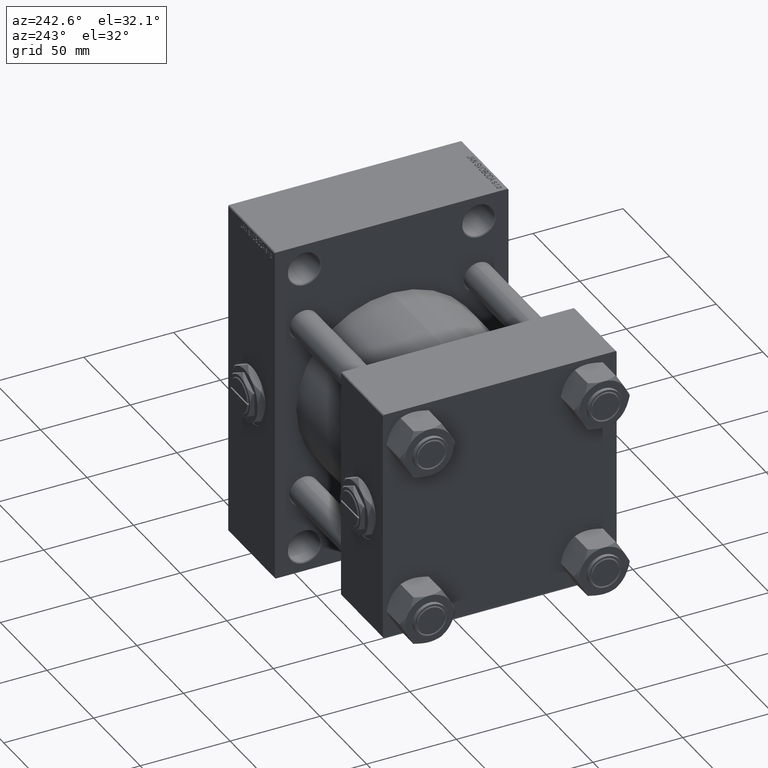
[diagram: clean part render]
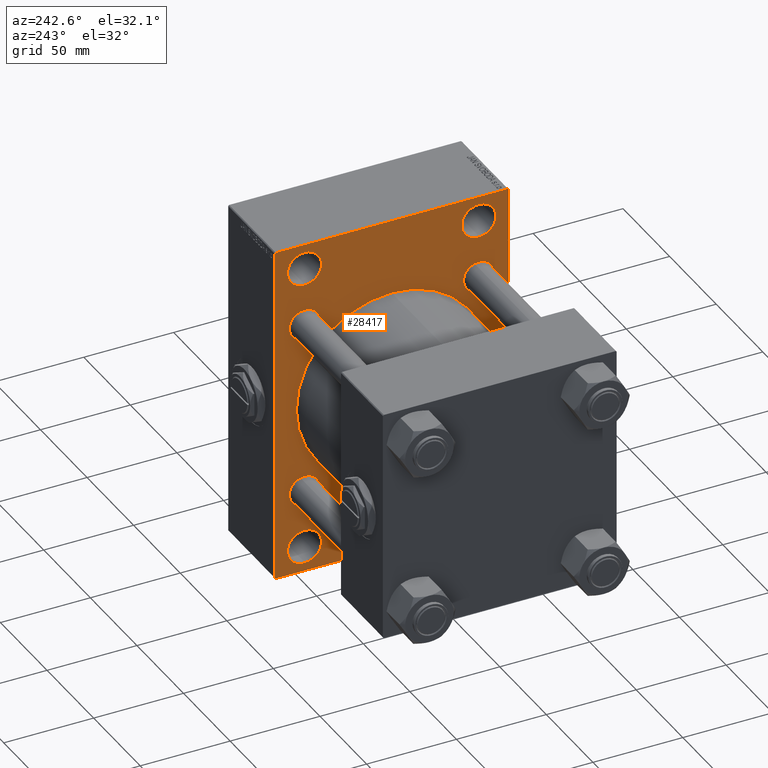
[diagram: same view with one face highlighted and labeled with its STEP entity id]
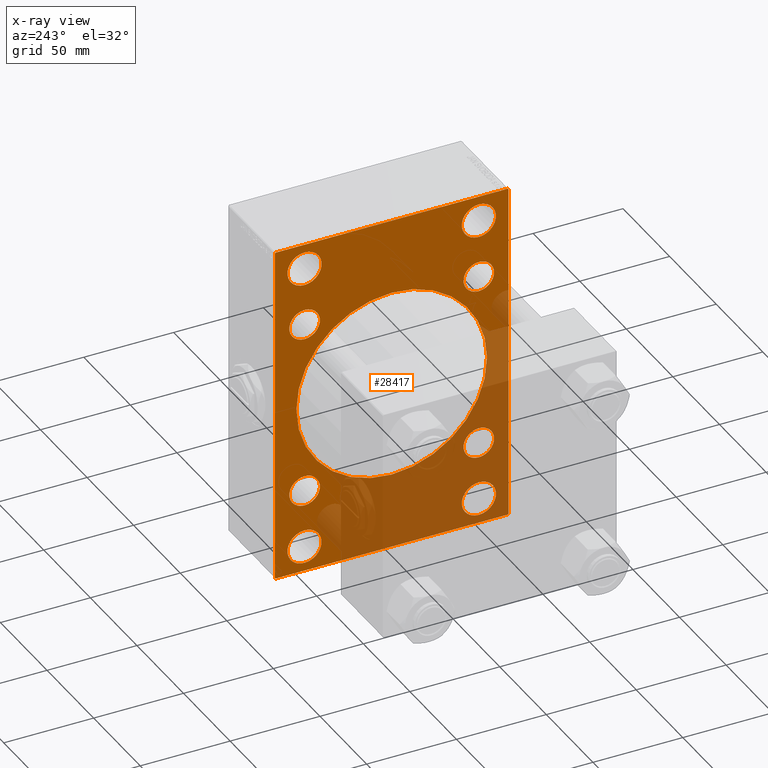
[diagram: x-ray of the same camera — body ghosted, the highlighted face saturated]
A machine part, auxiliary view. The second image highlights one B-rep face of the part: STEP entity #28417.
The next image is the same camera in x-ray: the body ghosted, the highlighted face saturated — about 38% of this face is hidden behind the body in this view.
In plain terms, the highlighted planar face has unit normal (-1, 0, 0).
Its self-contained STEP definition (entity closure, byte-faithful):
#185 = AXIS2_PLACEMENT_3D ( 'NONE', #3647, #42233, #19140 ) ;
#189 = LINE ( 'NONE', #15953, #9213 ) ;
#266 = VECTOR ( 'NONE', #19557, 1000.000000000000000 ) ;
#326 = CARTESIAN_POINT ( 'NONE',  ( 115.9999999999999858, -48.44999999999999574, 39.95000000000001705 ) ) ;
#479 = AXIS2_PLACEMENT_3D ( 'NONE', #4881, #43479, #13256 ) ;
#514 = VERTEX_POINT ( 'NONE', #7317 ) ;
#1043 = ORIENTED_EDGE ( 'NONE', *, *, #45472, .T. ) ;
#1374 = DIRECTION ( 'NONE',  ( 0.000000000000000000, 0.000000000000000000, 1.000000000000000000 ) ) ;
#1552 = CARTESIAN_POINT ( 'NONE',  ( 115.9999999999999858, 64.49999999999997158, 94.99999999999997158 ) ) ;
#1993 = CARTESIAN_POINT ( 'NONE',  ( 115.9999999999999858, -48.50000000000000000, 81.00000000000000000 ) ) ;
#2122 = CIRCLE ( 'NONE', #479, 9.500000000000092371 ) ;
#2539 = ORIENTED_EDGE ( 'NONE', *, *, #30850, .T. ) ;
#2541 = FACE_BOUND ( 'NONE', #49277, .T. ) ;
#2604 = AXIS2_PLACEMENT_3D ( 'NONE', #29008, #9720, #44494 ) ;
#2996 = AXIS2_PLACEMENT_3D ( 'NONE', #35184, #14638, #45870 ) ;
#3009 = LINE ( 'NONE', #11659, #21379 ) ;
#3452 = CARTESIAN_POINT ( 'NONE',  ( 115.9999999999999858, 79.74999999999997158, 79.74999999999997158 ) ) ;
#3535 = EDGE_CURVE ( 'NONE', #24826, #32572, #35415, .T. ) ;
#3617 = CARTESIAN_POINT ( 'NONE',  ( 115.9999999999999858, 48.45000000000000995, 39.95000000000000284 ) ) ;
#3647 = CARTESIAN_POINT ( 'NONE',  ( 115.9999999999999858, 48.45000000000000995, -48.45000000000001705 ) ) ;
#4098 = AXIS2_PLACEMENT_3D ( 'NONE', #10394, #25370, #17254 ) ;
#4618 = CARTESIAN_POINT ( 'NONE',  ( 115.9999999999999858, -48.44999999999999574, -56.95000000000003837 ) ) ;
#4881 = CARTESIAN_POINT ( 'NONE',  ( 115.9999999999999858, 48.50000000000000711, 81.00000000000000000 ) ) ;
#6076 = EDGE_LOOP ( 'NONE', ( #38759, #43574 ) ) ;
#6093 = CARTESIAN_POINT ( 'NONE',  ( 115.9999999999999858, -65.00000000000001421, 94.49999999999997158 ) ) ;
#6411 = CARTESIAN_POINT ( 'NONE',  ( 115.9999999999999858, 48.50000000000000711, -90.50000000000002842 ) ) ;
#6505 = EDGE_CURVE ( 'NONE', #514, #25174, #41614, .T. ) ;
#6859 = PLANE ( 'NONE',  #38880 ) ;
#7264 = DIRECTION ( 'NONE',  ( 0.000000000000000000, 0.7071067811865474617, -0.7071067811865474617 ) ) ;
#7317 = CARTESIAN_POINT ( 'NONE',  ( 115.9999999999999858, 64.99999999999997158, 94.49999999999997158 ) ) ;
#7328 = CARTESIAN_POINT ( 'NONE',  ( 115.9999999999999858, 48.50000000000000711, 71.49999999999991473 ) ) ;
#7330 = DIRECTION ( 'NONE',  ( 0.000000000000000000, -1.000000000000000000, -1.067522139062650425E-16 ) ) ;
#7540 = CIRCLE ( 'NONE', #11616, 9.500000000000008882 ) ;
#8021 = VECTOR ( 'NONE', #15208, 1000.000000000000000 ) ;
#8211 = EDGE_CURVE ( 'NONE', #35736, #514, #39240, .T. ) ;
#8418 = EDGE_CURVE ( 'NONE', #38968, #50275, #48825, .T. ) ;
#8489 = DIRECTION ( 'NONE',  ( 0.000000000000000000, 0.000000000000000000, 1.000000000000000000 ) ) ;
#8695 = EDGE_CURVE ( 'NONE', #24066, #28839, #39112, .T. ) ;
#8922 = VERTEX_POINT ( 'NONE', #25261 ) ;
#9206 = DIRECTION ( 'NONE',  ( 0.000000000000000000, 0.000000000000000000, 1.000000000000000000 ) ) ;
#9213 = VECTOR ( 'NONE', #35001, 1000.000000000000000 ) ;
#9426 = EDGE_CURVE ( 'NONE', #43359, #46652, #31024, .T. ) ;
#9429 = FACE_BOUND ( 'NONE', #11399, .T. ) ;
#9489 = AXIS2_PLACEMENT_3D ( 'NONE', #49705, #14908, #10857 ) ;
#9693 = CIRCLE ( 'NONE', #48610, 53.00000000000000711 ) ;
#9720 = DIRECTION ( 'NONE',  ( 1.000000000000000000, 0.000000000000000000, 0.000000000000000000 ) ) ;
#9777 = DIRECTION ( 'NONE',  ( 1.000000000000000000, -0.000000000000000000, 0.000000000000000000 ) ) ;
#9810 = DIRECTION ( 'NONE',  ( 1.000000000000000000, 0.000000000000000000, 0.000000000000000000 ) ) ;
#9997 = VERTEX_POINT ( 'NONE', #27843 ) ;
#10120 = AXIS2_PLACEMENT_3D ( 'NONE', #45251, #33069, #37133 ) ;
#10394 = CARTESIAN_POINT ( 'NONE',  ( 115.9999999999999858, -48.44999999999999574, 48.45000000000003126 ) ) ;
#10592 = CARTESIAN_POINT ( 'NONE',  ( 115.9999999999999858, 48.50000000000000711, 81.00000000000000000 ) ) ;
#10677 = CARTESIAN_POINT ( 'NONE',  ( 115.9999999999999858, 0.000000000000000000, 0.000000000000000000 ) ) ;
#10692 = DIRECTION ( 'NONE',  ( 0.000000000000000000, 0.000000000000000000, 1.000000000000000000 ) ) ;
#10746 = VERTEX_POINT ( 'NONE', #34674 ) ;
#10857 = DIRECTION ( 'NONE',  ( 0.000000000000000000, 0.000000000000000000, 1.000000000000000000 ) ) ;
#11207 = LINE ( 'NONE', #15750, #266 ) ;
#11349 = EDGE_CURVE ( 'NONE', #25174, #38660, #11207, .T. ) ;
#11399 = EDGE_LOOP ( 'NONE', ( #26192, #12251 ) ) ;
#11557 = EDGE_LOOP ( 'NONE', ( #14043, #28852, #25528, #14440, #42158, #25146, #28084, #15288 ) ) ;
#11616 = AXIS2_PLACEMENT_3D ( 'NONE', #47677, #40317, #16952 ) ;
#11659 = CARTESIAN_POINT ( 'NONE',  ( 115.9999999999999858, 64.99999999999998579, -95.00000000000001421 ) ) ;
#11705 = EDGE_CURVE ( 'NONE', #38660, #8922, #3009, .T. ) ;
#12049 = DIRECTION ( 'NONE',  ( 1.000000000000000000, -0.000000000000000000, 0.000000000000000000 ) ) ;
#12251 = ORIENTED_EDGE ( 'NONE', *, *, #47305, .T. ) ;
#12376 = AXIS2_PLACEMENT_3D ( 'NONE', #17526, #18028, #33751 ) ;
#12547 = CIRCLE ( 'NONE', #10120, 8.500000000000007105 ) ;
#12568 = DIRECTION ( 'NONE',  ( 0.000000000000000000, 0.000000000000000000, 1.000000000000000000 ) ) ;
#12680 = VERTEX_POINT ( 'NONE', #6093 ) ;
#12896 = CARTESIAN_POINT ( 'NONE',  ( 115.9999999999999858, -48.44999999999999574, -39.95000000000001705 ) ) ;
#13004 = DIRECTION ( 'NONE',  ( 1.000000000000000000, -0.000000000000000000, 0.000000000000000000 ) ) ;
#13036 = CIRCLE ( 'NONE', #45470, 8.500000000000007105 ) ;
#13256 = DIRECTION ( 'NONE',  ( 0.000000000000000000, 0.000000000000000000, 1.000000000000000000 ) ) ;
#13516 = CIRCLE ( 'NONE', #46751, 8.500000000000007105 ) ;
#13578 = CARTESIAN_POINT ( 'NONE',  ( 115.9999999999999858, -65.00000000000001421, 94.99999999999997158 ) ) ;
#13669 = EDGE_CURVE ( 'NONE', #50275, #38968, #36858, .T. ) ;
#13745 = CARTESIAN_POINT ( 'NONE',  ( 115.9999999999999858, 48.50000000000000711, -81.00000000000001421 ) ) ;
#14043 = ORIENTED_EDGE ( 'NONE', *, *, #11705, .T. ) ;
#14440 = ORIENTED_EDGE ( 'NONE', *, *, #47150, .T. ) ;
#14637 = CARTESIAN_POINT ( 'NONE',  ( 115.9999999999999858, 64.99999999999997158, 94.99999999999997158 ) ) ;
#14638 = DIRECTION ( 'NONE',  ( 1.000000000000000000, -0.000000000000000000, 0.000000000000000000 ) ) ;
#14908 = DIRECTION ( 'NONE',  ( 1.000000000000000000, -0.000000000000000000, 0.000000000000000000 ) ) ;
#14967 = AXIS2_PLACEMENT_3D ( 'NONE', #13745, #48778, #10692 ) ;
#15208 = DIRECTION ( 'NONE',  ( 0.000000000000000000, 7.304098846218135653E-17, -1.000000000000000000 ) ) ;
#15288 = ORIENTED_EDGE ( 'NONE', *, *, #11349, .T. ) ;
#15316 = ORIENTED_EDGE ( 'NONE', *, *, #44530, .T. ) ;
#15477 = DIRECTION ( 'NONE',  ( -0.000000000000000000, 0.000000000000000000, 1.000000000000000000 ) ) ;
#15483 = VECTOR ( 'NONE', #44556, 1000.000000000000000 ) ;
#15543 = ORIENTED_EDGE ( 'NONE', *, *, #50227, .T. ) ;
#15750 = CARTESIAN_POINT ( 'NONE',  ( 115.9999999999999858, 79.74999999999913314, -79.75000000000132161 ) ) ;
#15953 = CARTESIAN_POINT ( 'NONE',  ( 115.9999999999999858, -79.75000000000089528, 79.74999999999867839 ) ) ;
#16342 = ORIENTED_EDGE ( 'NONE', *, *, #39515, .T. ) ;
#16952 = DIRECTION ( 'NONE',  ( 0.000000000000000000, 0.000000000000000000, 1.000000000000000000 ) ) ;
#17151 = EDGE_CURVE ( 'NONE', #9997, #43151, #35364, .T. ) ;
#17189 = EDGE_CURVE ( 'NONE', #22475, #40450, #2122, .T. ) ;
#17254 = DIRECTION ( 'NONE',  ( 0.000000000000000000, 0.000000000000000000, 1.000000000000000000 ) ) ;
#17486 = CARTESIAN_POINT ( 'NONE',  ( 115.9999999999999858, -48.49999999999999289, -90.50000000000002842 ) ) ;
#17526 = CARTESIAN_POINT ( 'NONE',  ( 115.9999999999999858, -48.49999999999999289, -81.00000000000001421 ) ) ;
#17540 = FACE_BOUND ( 'NONE', #32500, .T. ) ;
#17612 = EDGE_CURVE ( 'NONE', #42857, #43075, #13516, .T. ) ;
#18028 = DIRECTION ( 'NONE',  ( 1.000000000000000000, -0.000000000000000000, 0.000000000000000000 ) ) ;
#18129 = AXIS2_PLACEMENT_3D ( 'NONE', #42737, #49867, #42480 ) ;
#18672 = EDGE_CURVE ( 'NONE', #10746, #33962, #20031, .T. ) ;
#18713 = ORIENTED_EDGE ( 'NONE', *, *, #18672, .T. ) ;
#18838 = CARTESIAN_POINT ( 'NONE',  ( 115.9999999999999858, -79.75000000000001421, -79.75000000000001421 ) ) ;
#19140 = DIRECTION ( 'NONE',  ( 0.000000000000000000, 0.000000000000000000, 1.000000000000000000 ) ) ;
#19557 = DIRECTION ( 'NONE',  ( -0.000000000000000000, -0.7071067811865573427, -0.7071067811865378028 ) ) ;
#19973 = VERTEX_POINT ( 'NONE', #4618 ) ;
#20031 = CIRCLE ( 'NONE', #2996, 9.500000000000092371 ) ;
#20898 = VECTOR ( 'NONE', #26318, 1000.000000000000000 ) ;
#21341 = FACE_BOUND ( 'NONE', #36469, .T. ) ;
#21379 = VECTOR ( 'NONE', #7330, 1000.000000000000000 ) ;
#21546 = DIRECTION ( 'NONE',  ( 1.000000000000000000, -0.000000000000000000, 0.000000000000000000 ) ) ;
#21841 = FACE_BOUND ( 'NONE', #42195, .T. ) ;
#21953 = EDGE_CURVE ( 'NONE', #8922, #44285, #26454, .T. ) ;
#22387 = AXIS2_PLACEMENT_3D ( 'NONE', #36608, #13004, #9206 ) ;
#22475 = VERTEX_POINT ( 'NONE', #32325 ) ;
#22549 = ORIENTED_EDGE ( 'NONE', *, *, #41869, .T. ) ;
#22764 = DIRECTION ( 'NONE',  ( 1.000000000000000000, -0.000000000000000000, 0.000000000000000000 ) ) ;
#22853 = FACE_OUTER_BOUND ( 'NONE', #11557, .T. ) ;
#23537 = CARTESIAN_POINT ( 'NONE',  ( 115.9999999999999858, 3.888542821515762466E-15, -53.00000000000000711 ) ) ;
#23991 = EDGE_CURVE ( 'NONE', #35736, #46113, #49934, .T. ) ;
#24066 = VERTEX_POINT ( 'NONE', #43497 ) ;
#24786 = ORIENTED_EDGE ( 'NONE', *, *, #34167, .T. ) ;
#24826 = VERTEX_POINT ( 'NONE', #326 ) ;
#25146 = ORIENTED_EDGE ( 'NONE', *, *, #8211, .T. ) ;
#25152 = FACE_BOUND ( 'NONE', #44340, .T. ) ;
#25174 = VERTEX_POINT ( 'NONE', #50078 ) ;
#25261 = CARTESIAN_POINT ( 'NONE',  ( 115.9999999999999858, -64.50000000000001421, -95.00000000000002842 ) ) ;
#25266 = CIRCLE ( 'NONE', #38134, 9.500000000000092371 ) ;
#25370 = DIRECTION ( 'NONE',  ( 1.000000000000000000, -0.000000000000000000, 0.000000000000000000 ) ) ;
#25528 = ORIENTED_EDGE ( 'NONE', *, *, #37214, .F. ) ;
#26192 = ORIENTED_EDGE ( 'NONE', *, *, #17189, .T. ) ;
#26277 = CARTESIAN_POINT ( 'NONE',  ( 115.9999999999999858, -48.49999999999999289, -71.50000000000001421 ) ) ;
#26318 = DIRECTION ( 'NONE',  ( 0.000000000000000000, -1.000000000000000000, 0.000000000000000000 ) ) ;
#26454 = LINE ( 'NONE', #18838, #49208 ) ;
#27071 = AXIS2_PLACEMENT_3D ( 'NONE', #10592, #22764, #45616 ) ;
#27843 = CARTESIAN_POINT ( 'NONE',  ( 115.9999999999999858, 48.45000000000000995, -39.95000000000000284 ) ) ;
#28084 = ORIENTED_EDGE ( 'NONE', *, *, #6505, .T. ) ;
#28417 = ADVANCED_FACE ( 'NONE', ( #25152, #28713, #44200, #9429, #41144, #21841, #2541, #21341, #17540, #22853 ), #6859, .T. ) ;
#28646 = ORIENTED_EDGE ( 'NONE', *, *, #17612, .T. ) ;
#28713 = FACE_BOUND ( 'NONE', #39961, .T. ) ;
#28839 = VERTEX_POINT ( 'NONE', #23537 ) ;
#28840 = DIRECTION ( 'NONE',  ( 0.000000000000000000, 0.000000000000000000, -1.000000000000000000 ) ) ;
#28852 = ORIENTED_EDGE ( 'NONE', *, *, #21953, .T. ) ;
#29008 = CARTESIAN_POINT ( 'NONE',  ( 115.9999999999999858, -2.602085213965210642E-15, 0.000000000000000000 ) ) ;
#29142 = CARTESIAN_POINT ( 'NONE',  ( 115.9999999999999858, -64.50000000000002842, 94.99999999999997158 ) ) ;
#29294 = CIRCLE ( 'NONE', #33342, 8.500000000000007105 ) ;
#29474 = VECTOR ( 'NONE', #7264, 1000.000000000000114 ) ;
#29860 = CARTESIAN_POINT ( 'NONE',  ( 115.9999999999999858, 64.49999999999998579, -95.00000000000001421 ) ) ;
#30471 = CARTESIAN_POINT ( 'NONE',  ( 115.9999999999999858, 48.45000000000000995, 56.95000000000002416 ) ) ;
#30850 = EDGE_CURVE ( 'NONE', #45469, #19973, #13036, .T. ) ;
#31024 = CIRCLE ( 'NONE', #12376, 9.500000000000008882 ) ;
#31895 = CARTESIAN_POINT ( 'NONE',  ( 115.9999999999999858, -2.602085213965210642E-15, 0.000000000000000000 ) ) ;
#32325 = CARTESIAN_POINT ( 'NONE',  ( 115.9999999999999858, 48.50000000000000711, 90.50000000000009948 ) ) ;
#32500 = EDGE_LOOP ( 'NONE', ( #48275, #24786 ) ) ;
#32572 = VERTEX_POINT ( 'NONE', #49233 ) ;
#33069 = DIRECTION ( 'NONE',  ( 1.000000000000000000, -0.000000000000000000, 0.000000000000000000 ) ) ;
#33342 = AXIS2_PLACEMENT_3D ( 'NONE', #46327, #12049, #8489 ) ;
#33751 = DIRECTION ( 'NONE',  ( 0.000000000000000000, 0.000000000000000000, 1.000000000000000000 ) ) ;
#33962 = VERTEX_POINT ( 'NONE', #43326 ) ;
#34114 = LINE ( 'NONE', #13578, #15483 ) ;
#34167 = EDGE_CURVE ( 'NONE', #28839, #24066, #9693, .T. ) ;
#34674 = CARTESIAN_POINT ( 'NONE',  ( 115.9999999999999858, -48.50000000000000000, 71.49999999999991473 ) ) ;
#34684 = ORIENTED_EDGE ( 'NONE', *, *, #17151, .T. ) ;
#35001 = DIRECTION ( 'NONE',  ( -0.000000000000000000, 0.7071067811865378028, 0.7071067811865573427 ) ) ;
#35184 = CARTESIAN_POINT ( 'NONE',  ( 115.9999999999999858, -48.50000000000000000, 81.00000000000000000 ) ) ;
#35364 = CIRCLE ( 'NONE', #22387, 8.500000000000007105 ) ;
#35415 = CIRCLE ( 'NONE', #9489, 8.500000000000007105 ) ;
#35736 = VERTEX_POINT ( 'NONE', #1552 ) ;
#36469 = EDGE_LOOP ( 'NONE', ( #2539, #15543 ) ) ;
#36608 = CARTESIAN_POINT ( 'NONE',  ( 115.9999999999999858, 48.45000000000000995, -48.45000000000001705 ) ) ;
#36858 = CIRCLE ( 'NONE', #14967, 9.500000000000008882 ) ;
#36945 = EDGE_CURVE ( 'NONE', #32572, #24826, #47046, .T. ) ;
#37133 = DIRECTION ( 'NONE',  ( 0.000000000000000000, 0.000000000000000000, 1.000000000000000000 ) ) ;
#37214 = EDGE_CURVE ( 'NONE', #12680, #44285, #34114, .T. ) ;
#37834 = DIRECTION ( 'NONE',  ( -1.000000000000000000, 0.000000000000000000, -0.000000000000000000 ) ) ;
#38134 = AXIS2_PLACEMENT_3D ( 'NONE', #1993, #21546, #39847 ) ;
#38325 = CARTESIAN_POINT ( 'NONE',  ( 115.9999999999999858, 64.99999999999997158, 94.99999999999997158 ) ) ;
#38660 = VERTEX_POINT ( 'NONE', #29860 ) ;
#38759 = ORIENTED_EDGE ( 'NONE', *, *, #8418, .T. ) ;
#38880 = AXIS2_PLACEMENT_3D ( 'NONE', #10677, #37834, #15477 ) ;
#38968 = VERTEX_POINT ( 'NONE', #43530 ) ;
#39112 = CIRCLE ( 'NONE', #2604, 53.00000000000000711 ) ;
#39240 = LINE ( 'NONE', #3452, #29474 ) ;
#39515 = EDGE_CURVE ( 'NONE', #33962, #10746, #25266, .T. ) ;
#39847 = DIRECTION ( 'NONE',  ( 0.000000000000000000, 0.000000000000000000, 1.000000000000000000 ) ) ;
#39939 = ORIENTED_EDGE ( 'NONE', *, *, #3535, .T. ) ;
#39961 = EDGE_LOOP ( 'NONE', ( #1043, #49399 ) ) ;
#39982 = DIRECTION ( 'NONE',  ( 1.000000000000000000, -0.000000000000000000, 0.000000000000000000 ) ) ;
#39993 = CARTESIAN_POINT ( 'NONE',  ( 115.9999999999999858, -65.00000000000001421, -94.50000000000002842 ) ) ;
#40317 = DIRECTION ( 'NONE',  ( 1.000000000000000000, -0.000000000000000000, 0.000000000000000000 ) ) ;
#40450 = VERTEX_POINT ( 'NONE', #7328 ) ;
#40995 = CARTESIAN_POINT ( 'NONE',  ( 115.9999999999999858, 48.45000000000000995, 48.45000000000001705 ) ) ;
#41144 = FACE_BOUND ( 'NONE', #46102, .T. ) ;
#41614 = LINE ( 'NONE', #38325, #8021 ) ;
#41869 = EDGE_CURVE ( 'NONE', #43075, #42857, #29294, .T. ) ;
#42158 = ORIENTED_EDGE ( 'NONE', *, *, #23991, .F. ) ;
#42195 = EDGE_LOOP ( 'NONE', ( #22549, #28646 ) ) ;
#42233 = DIRECTION ( 'NONE',  ( 1.000000000000000000, -0.000000000000000000, 0.000000000000000000 ) ) ;
#42431 = DIRECTION ( 'NONE',  ( 0.000000000000000000, -0.7071067811865474617, 0.7071067811865474617 ) ) ;
#42480 = DIRECTION ( 'NONE',  ( 0.000000000000000000, 0.000000000000000000, 1.000000000000000000 ) ) ;
#42737 = CARTESIAN_POINT ( 'NONE',  ( 115.9999999999999858, 48.50000000000000711, -81.00000000000001421 ) ) ;
#42857 = VERTEX_POINT ( 'NONE', #3617 ) ;
#43075 = VERTEX_POINT ( 'NONE', #30471 ) ;
#43151 = VERTEX_POINT ( 'NONE', #47210 ) ;
#43326 = CARTESIAN_POINT ( 'NONE',  ( 115.9999999999999858, -48.50000000000000000, 90.50000000000009948 ) ) ;
#43359 = VERTEX_POINT ( 'NONE', #17486 ) ;
#43479 = DIRECTION ( 'NONE',  ( 1.000000000000000000, -0.000000000000000000, 0.000000000000000000 ) ) ;
#43497 = CARTESIAN_POINT ( 'NONE',  ( 115.9999999999999858, -2.602085213965210642E-15, 53.00000000000000711 ) ) ;
#43530 = CARTESIAN_POINT ( 'NONE',  ( 115.9999999999999858, 48.50000000000000711, -71.50000000000001421 ) ) ;
#43574 = ORIENTED_EDGE ( 'NONE', *, *, #13669, .T. ) ;
#44200 = FACE_BOUND ( 'NONE', #6076, .T. ) ;
#44285 = VERTEX_POINT ( 'NONE', #39993 ) ;
#44340 = EDGE_LOOP ( 'NONE', ( #16342, #18713 ) ) ;
#44494 = DIRECTION ( 'NONE',  ( 0.000000000000000000, 0.000000000000000000, -1.000000000000000000 ) ) ;
#44530 = EDGE_CURVE ( 'NONE', #43151, #9997, #47217, .T. ) ;
#44556 = DIRECTION ( 'NONE',  ( 0.000000000000000000, 0.000000000000000000, -1.000000000000000000 ) ) ;
#45251 = CARTESIAN_POINT ( 'NONE',  ( 115.9999999999999858, -48.44999999999999574, -48.45000000000003126 ) ) ;
#45469 = VERTEX_POINT ( 'NONE', #12896 ) ;
#45470 = AXIS2_PLACEMENT_3D ( 'NONE', #47346, #39982, #12568 ) ;
#45472 = EDGE_CURVE ( 'NONE', #46652, #43359, #7540, .T. ) ;
#45616 = DIRECTION ( 'NONE',  ( 0.000000000000000000, 0.000000000000000000, 1.000000000000000000 ) ) ;
#45870 = DIRECTION ( 'NONE',  ( 0.000000000000000000, 0.000000000000000000, 1.000000000000000000 ) ) ;
#46102 = EDGE_LOOP ( 'NONE', ( #47445, #39939 ) ) ;
#46113 = VERTEX_POINT ( 'NONE', #29142 ) ;
#46327 = CARTESIAN_POINT ( 'NONE',  ( 115.9999999999999858, 48.45000000000000995, 48.45000000000001705 ) ) ;
#46652 = VERTEX_POINT ( 'NONE', #26277 ) ;
#46751 = AXIS2_PLACEMENT_3D ( 'NONE', #40995, #9777, #1374 ) ;
#47046 = CIRCLE ( 'NONE', #4098, 8.500000000000007105 ) ;
#47150 = EDGE_CURVE ( 'NONE', #12680, #46113, #189, .T. ) ;
#47210 = CARTESIAN_POINT ( 'NONE',  ( 115.9999999999999858, 48.45000000000000995, -56.95000000000002416 ) ) ;
#47217 = CIRCLE ( 'NONE', #185, 8.500000000000007105 ) ;
#47305 = EDGE_CURVE ( 'NONE', #40450, #22475, #48960, .T. ) ;
#47346 = CARTESIAN_POINT ( 'NONE',  ( 115.9999999999999858, -48.44999999999999574, -48.45000000000003126 ) ) ;
#47445 = ORIENTED_EDGE ( 'NONE', *, *, #36945, .T. ) ;
#47677 = CARTESIAN_POINT ( 'NONE',  ( 115.9999999999999858, -48.49999999999999289, -81.00000000000001421 ) ) ;
#48275 = ORIENTED_EDGE ( 'NONE', *, *, #8695, .T. ) ;
#48610 = AXIS2_PLACEMENT_3D ( 'NONE', #31895, #9810, #28840 ) ;
#48778 = DIRECTION ( 'NONE',  ( 1.000000000000000000, -0.000000000000000000, 0.000000000000000000 ) ) ;
#48825 = CIRCLE ( 'NONE', #18129, 9.500000000000008882 ) ;
#48960 = CIRCLE ( 'NONE', #27071, 9.500000000000092371 ) ;
#49208 = VECTOR ( 'NONE', #42431, 1000.000000000000114 ) ;
#49233 = CARTESIAN_POINT ( 'NONE',  ( 115.9999999999999858, -48.44999999999999574, 56.95000000000003837 ) ) ;
#49277 = EDGE_LOOP ( 'NONE', ( #34684, #15316 ) ) ;
#49399 = ORIENTED_EDGE ( 'NONE', *, *, #9426, .T. ) ;
#49705 = CARTESIAN_POINT ( 'NONE',  ( 115.9999999999999858, -48.44999999999999574, 48.45000000000003126 ) ) ;
#49867 = DIRECTION ( 'NONE',  ( 1.000000000000000000, -0.000000000000000000, 0.000000000000000000 ) ) ;
#49934 = LINE ( 'NONE', #14637, #20898 ) ;
#50078 = CARTESIAN_POINT ( 'NONE',  ( 115.9999999999999858, 64.99999999999998579, -94.50000000000002842 ) ) ;
#50227 = EDGE_CURVE ( 'NONE', #19973, #45469, #12547, .T. ) ;
#50275 = VERTEX_POINT ( 'NONE', #6411 ) ;